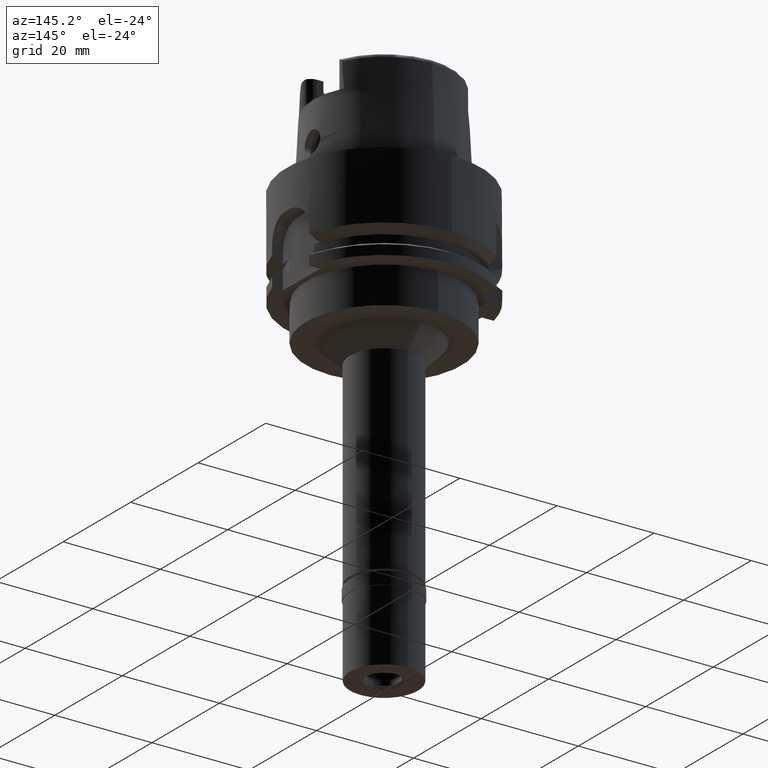
[diagram: clean part render]
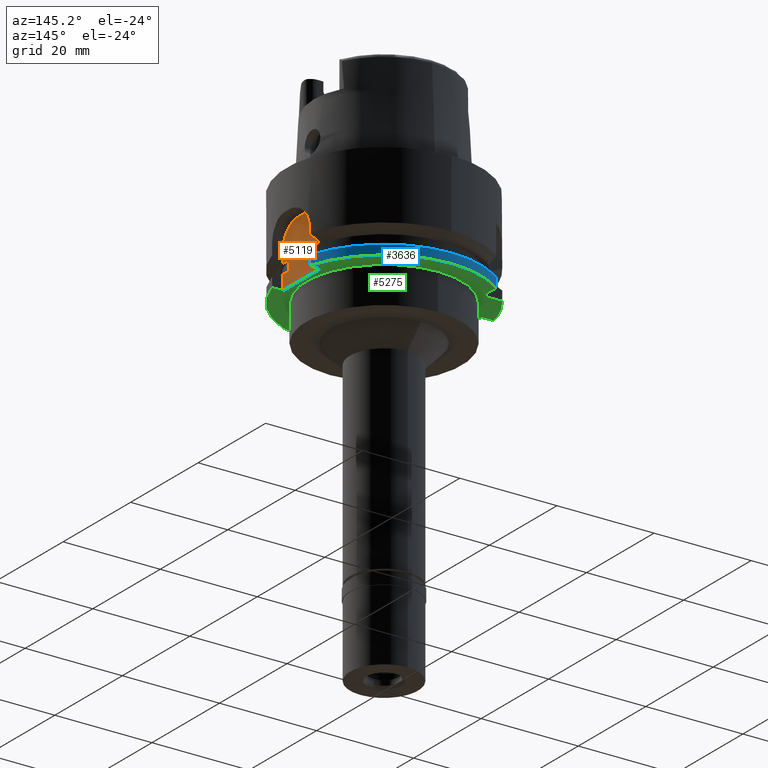
[diagram: same view with three faces highlighted in distinct colors, each labeled with its STEP entity id]
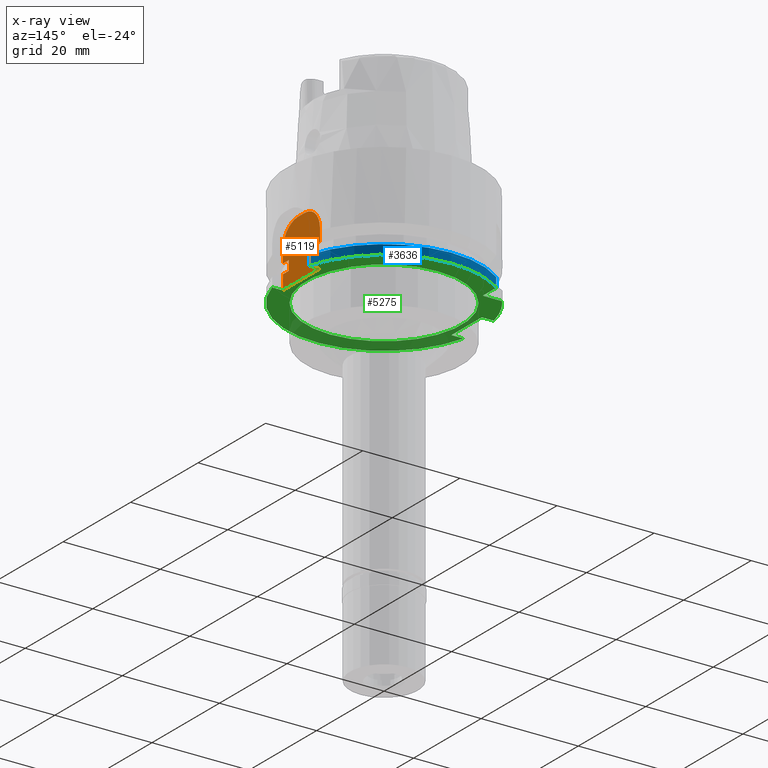
[diagram: x-ray of the same camera — body ghosted, the three highlighted faces saturated]
A machine part, auxiliary view with three faces highlighted in distinct colors.
The next image is the same camera in x-ray (body ghosted, the three faces saturated) — at least one of them is partly hidden behind the body in this view.
Their STEP definitions:

[orange] entity #5119 — the highlighted planar face has unit normal (1, 0, 0).
#73 = CIRCLE ( 'NONE', #3501, 4.500000000000000888 ) ;
#217 = CIRCLE ( 'NONE', #3142, 4.500000000000000000 ) ;
#259 = ORIENTED_EDGE ( 'NONE', *, *, #3910, .F. ) ;
#266 = EDGE_CURVE ( 'NONE', #3184, #2730, #5285, .T. ) ;
#293 = VECTOR ( 'NONE', #3037, 1000.000000000000000 ) ;
#308 = EDGE_CURVE ( 'NONE', #3184, #501, #2473, .T. ) ;
#310 = CARTESIAN_POINT ( 'NONE',  ( 17.00000000000000000, 3.709447398197999846, -15.00000000000000000 ) ) ;
#352 = ORIENTED_EDGE ( 'NONE', *, *, #266, .F. ) ;
#370 = CARTESIAN_POINT ( 'NONE',  ( 17.00000000000000000, -3.709447398197999846, -15.00000000000000000 ) ) ;
#462 = EDGE_CURVE ( 'NONE', #501, #1910, #2981, .T. ) ;
#470 = CARTESIAN_POINT ( 'NONE',  ( 17.00000000000000000, 5.500000000000000000, -17.00000000000000000 ) ) ;
#501 = VERTEX_POINT ( 'NONE', #4712 ) ;
#543 = ORIENTED_EDGE ( 'NONE', *, *, #2597, .F. ) ;
#569 = CARTESIAN_POINT ( 'NONE',  ( 17.00000000000000000, 3.709447398197999846, -17.00000000000000000 ) ) ;
#589 = LINE ( 'NONE', #470, #4673 ) ;
#620 = VECTOR ( 'NONE', #4679, 1000.000000000000000 ) ;
#628 = CARTESIAN_POINT ( 'NONE',  ( 17.00000000000000000, -1.000000000000000000, -12.50000000000000000 ) ) ;
#653 = DIRECTION ( 'NONE',  ( 0.0000000000000000000, 0.0000000000000000000, 1.000000000000000000 ) ) ;
#696 = VERTEX_POINT ( 'NONE', #1282 ) ;
#774 = LINE ( 'NONE', #4700, #5126 ) ;
#775 = VERTEX_POINT ( 'NONE', #5060 ) ;
#777 = ORIENTED_EDGE ( 'NONE', *, *, #308, .T. ) ;
#799 = DIRECTION ( 'NONE',  ( 0.0000000000000000000, -1.000000000000000000, 0.0000000000000000000 ) ) ;
#885 = VECTOR ( 'NONE', #4891, 1000.000000000000000 ) ;
#895 = DIRECTION ( 'NONE',  ( 0.0000000000000000000, 0.0000000000000000000, 1.000000000000000000 ) ) ;
#896 = CARTESIAN_POINT ( 'NONE',  ( 17.00000000000000000, 0.0000000000000000000, 0.0000000000000000000 ) ) ;
#923 = PLANE ( 'NONE',  #3047 ) ;
#978 = VECTOR ( 'NONE', #3182, 1000.000000000000000 ) ;
#1107 = VERTEX_POINT ( 'NONE', #2784 ) ;
#1118 = CARTESIAN_POINT ( 'NONE',  ( 17.00000000000000000, 5.500000000000000000, -15.00000000000000000 ) ) ;
#1164 = ORIENTED_EDGE ( 'NONE', *, *, #1797, .T. ) ;
#1282 = CARTESIAN_POINT ( 'NONE',  ( 17.00000000000000000, 5.500000000000000000, -15.00000000000000000 ) ) ;
#1290 = CARTESIAN_POINT ( 'NONE',  ( 17.00000000000000000, 3.709447398197999846, -17.00000000000000000 ) ) ;
#1351 = VECTOR ( 'NONE', #1360, 1000.000000000000000 ) ;
#1360 = DIRECTION ( 'NONE',  ( 0.0000000000000000000, -1.000000000000000000, 0.0000000000000000000 ) ) ;
#1397 = CARTESIAN_POINT ( 'NONE',  ( 17.00000000000000000, -3.709447398197999846, -15.00000000000000000 ) ) ;
#1457 = LINE ( 'NONE', #4732, #3485 ) ;
#1505 = EDGE_CURVE ( 'NONE', #4480, #2372, #73, .T. ) ;
#1528 = EDGE_LOOP ( 'NONE', ( #2800, #3865, #1164, #543, #3500, #4783, #3365, #5176, #4266, #352, #777, #4536, #2268, #259 ) ) ;
#1596 = CARTESIAN_POINT ( 'NONE',  ( 17.00000000000000000, -5.500000000000000000, -15.00000000000000000 ) ) ;
#1664 = EDGE_CURVE ( 'NONE', #2730, #4460, #774, .T. ) ;
#1746 = DIRECTION ( 'NONE',  ( 0.0000000000000000000, 0.0000000000000000000, -1.000000000000000000 ) ) ;
#1797 = EDGE_CURVE ( 'NONE', #3073, #2106, #3046, .T. ) ;
#1818 = CARTESIAN_POINT ( 'NONE',  ( 17.00000000000000000, -3.709447398197999846, -17.00000000000000000 ) ) ;
#1883 = DIRECTION ( 'NONE',  ( 1.000000000000000000, 0.0000000000000000000, 0.0000000000000000000 ) ) ;
#1910 = VERTEX_POINT ( 'NONE', #3331 ) ;
#2106 = VERTEX_POINT ( 'NONE', #310 ) ;
#2189 = DIRECTION ( 'NONE',  ( -1.000000000000000000, 0.0000000000000000000, 0.0000000000000000000 ) ) ;
#2248 = VERTEX_POINT ( 'NONE', #3675 ) ;
#2268 = ORIENTED_EDGE ( 'NONE', *, *, #4849, .F. ) ;
#2270 = DIRECTION ( 'NONE',  ( 0.0000000000000000000, -1.000000000000000000, 0.0000000000000000000 ) ) ;
#2283 = CARTESIAN_POINT ( 'NONE',  ( 17.00000000000000000, 5.500000000000000000, -17.00000000000000000 ) ) ;
#2318 = CARTESIAN_POINT ( 'NONE',  ( 17.00000000000000000, -5.500000000000000000, -12.50000000000000000 ) ) ;
#2372 = VERTEX_POINT ( 'NONE', #5063 ) ;
#2473 = LINE ( 'NONE', #370, #2555 ) ;
#2533 = VECTOR ( 'NONE', #3234, 1000.000000000000000 ) ;
#2555 = VECTOR ( 'NONE', #3650, 1000.000000000000000 ) ;
#2597 = EDGE_CURVE ( 'NONE', #696, #2106, #3157, .T. ) ;
#2653 = VECTOR ( 'NONE', #799, 1000.000000000000000 ) ;
#2695 = DIRECTION ( 'NONE',  ( 0.0000000000000000000, 0.0000000000000000000, 1.000000000000000000 ) ) ;
#2730 = VERTEX_POINT ( 'NONE', #1596 ) ;
#2784 = CARTESIAN_POINT ( 'NONE',  ( 17.00000000000000000, 5.500000000000000000, -20.00000000000000000 ) ) ;
#2800 = ORIENTED_EDGE ( 'NONE', *, *, #5206, .F. ) ;
#2963 = VECTOR ( 'NONE', #1746, 1000.000000000000000 ) ;
#2969 = CARTESIAN_POINT ( 'NONE',  ( 17.00000000000000000, 1.000000000000000000, -12.50000000000000000 ) ) ;
#2981 = LINE ( 'NONE', #1818, #1351 ) ;
#3037 = DIRECTION ( 'NONE',  ( 0.0000000000000000000, 0.0000000000000000000, -1.000000000000000000 ) ) ;
#3046 = LINE ( 'NONE', #1290, #885 ) ;
#3047 = AXIS2_PLACEMENT_3D ( 'NONE', #896, #1883, #3923 ) ;
#3073 = VERTEX_POINT ( 'NONE', #569 ) ;
#3078 = CARTESIAN_POINT ( 'NONE',  ( 17.00000000000000000, 5.500000000000000000, -20.00000000000000000 ) ) ;
#3088 = LINE ( 'NONE', #4321, #293 ) ;
#3142 = AXIS2_PLACEMENT_3D ( 'NONE', #628, #3932, #2270 ) ;
#3157 = LINE ( 'NONE', #1118, #978 ) ;
#3182 = DIRECTION ( 'NONE',  ( 0.0000000000000000000, -1.000000000000000000, 0.0000000000000000000 ) ) ;
#3184 = VERTEX_POINT ( 'NONE', #1397 ) ;
#3234 = DIRECTION ( 'NONE',  ( 0.0000000000000000000, 1.000000000000000000, 0.0000000000000000000 ) ) ;
#3331 = CARTESIAN_POINT ( 'NONE',  ( 17.00000000000000000, -5.500000000000000000, -17.00000000000000000 ) ) ;
#3365 = ORIENTED_EDGE ( 'NONE', *, *, #4175, .F. ) ;
#3460 = LINE ( 'NONE', #2283, #2963 ) ;
#3485 = VECTOR ( 'NONE', #653, 1000.000000000000000 ) ;
#3500 = ORIENTED_EDGE ( 'NONE', *, *, #5211, .F. ) ;
#3501 = AXIS2_PLACEMENT_3D ( 'NONE', #2969, #2189, #895 ) ;
#3637 = LINE ( 'NONE', #5268, #2533 ) ;
#3650 = DIRECTION ( 'NONE',  ( 0.0000000000000000000, -4.085620730621000160E-14, -1.000000000000000000 ) ) ;
#3675 = CARTESIAN_POINT ( 'NONE',  ( 17.00000000000000000, -1.000000000000000000, -8.000000000000000000 ) ) ;
#3865 = ORIENTED_EDGE ( 'NONE', *, *, #4965, .T. ) ;
#3894 = DIRECTION ( 'NONE',  ( 0.0000000000000000000, -1.000000000000000000, 0.0000000000000000000 ) ) ;
#3910 = EDGE_CURVE ( 'NONE', #1107, #775, #4210, .T. ) ;
#3923 = DIRECTION ( 'NONE',  ( 0.0000000000000000000, 1.000000000000000000, 0.0000000000000000000 ) ) ;
#3932 = DIRECTION ( 'NONE',  ( -1.000000000000000000, 0.0000000000000000000, 0.0000000000000000000 ) ) ;
#3960 = CARTESIAN_POINT ( 'NONE',  ( 17.00000000000000000, 5.500000000000000000, -17.00000000000000000 ) ) ;
#4103 = VERTEX_POINT ( 'NONE', #3960 ) ;
#4175 = EDGE_CURVE ( 'NONE', #2248, #4480, #3637, .T. ) ;
#4210 = LINE ( 'NONE', #3078, #620 ) ;
#4266 = ORIENTED_EDGE ( 'NONE', *, *, #1664, .F. ) ;
#4321 = CARTESIAN_POINT ( 'NONE',  ( 17.00000000000000000, 5.500000000000000000, -12.50000000000000000 ) ) ;
#4383 = CARTESIAN_POINT ( 'NONE',  ( 17.00000000000000000, 1.000000000000000000, -8.000000000000000000 ) ) ;
#4460 = VERTEX_POINT ( 'NONE', #2318 ) ;
#4480 = VERTEX_POINT ( 'NONE', #4383 ) ;
#4536 = ORIENTED_EDGE ( 'NONE', *, *, #462, .T. ) ;
#4555 = CARTESIAN_POINT ( 'NONE',  ( 17.00000000000000000, -3.709447398197999846, -15.00000000000000000 ) ) ;
#4598 = FACE_OUTER_BOUND ( 'NONE', #1528, .T. ) ;
#4673 = VECTOR ( 'NONE', #3894, 1000.000000000000000 ) ;
#4679 = DIRECTION ( 'NONE',  ( 0.0000000000000000000, -1.000000000000000000, 0.0000000000000000000 ) ) ;
#4700 = CARTESIAN_POINT ( 'NONE',  ( 17.00000000000000000, -5.500000000000000000, -15.00000000000000000 ) ) ;
#4712 = CARTESIAN_POINT ( 'NONE',  ( 17.00000000000000000, -3.709447398197999846, -17.00000000000000000 ) ) ;
#4732 = CARTESIAN_POINT ( 'NONE',  ( 17.00000000000000000, -5.500000000000000000, -20.00000000000000000 ) ) ;
#4783 = ORIENTED_EDGE ( 'NONE', *, *, #1505, .F. ) ;
#4849 = EDGE_CURVE ( 'NONE', #775, #1910, #1457, .T. ) ;
#4891 = DIRECTION ( 'NONE',  ( 0.0000000000000000000, 4.085620730621000160E-14, 1.000000000000000000 ) ) ;
#4895 = EDGE_CURVE ( 'NONE', #4460, #2248, #217, .T. ) ;
#4965 = EDGE_CURVE ( 'NONE', #4103, #3073, #589, .T. ) ;
#5060 = CARTESIAN_POINT ( 'NONE',  ( 17.00000000000000000, -5.500000000000000000, -20.00000000000000000 ) ) ;
#5063 = CARTESIAN_POINT ( 'NONE',  ( 17.00000000000000000, 5.500000000000000000, -12.50000000000000000 ) ) ;
#5119 = ADVANCED_FACE ( 'NONE', ( #4598 ), #923, .T. ) ;
#5126 = VECTOR ( 'NONE', #2695, 1000.000000000000000 ) ;
#5176 = ORIENTED_EDGE ( 'NONE', *, *, #4895, .F. ) ;
#5206 = EDGE_CURVE ( 'NONE', #4103, #1107, #3460, .T. ) ;
#5211 = EDGE_CURVE ( 'NONE', #2372, #696, #3088, .T. ) ;
#5268 = CARTESIAN_POINT ( 'NONE',  ( 17.00000000000000000, -1.000000000000000000, -8.000000000000000000 ) ) ;
#5285 = LINE ( 'NONE', #4555, #2653 ) ;

[blue] entity #3636 — the highlighted cylindrical surface (partial cylindrical patch) has radius 20 mm, axis along (0, 0, 1).
#52 = AXIS2_PLACEMENT_3D ( 'NONE', #3285, #2827, #3200 ) ;
#177 = CARTESIAN_POINT ( 'NONE',  ( 0.0000000000000000000, 0.0000000000000000000, -91.30000000000001137 ) ) ;
#664 = AXIS2_PLACEMENT_3D ( 'NONE', #4311, #4286, #1032 ) ;
#1027 = CARTESIAN_POINT ( 'NONE',  ( 19.22888452303000051, 5.500000000000000000, -20.00000000000000000 ) ) ;
#1032 = DIRECTION ( 'NONE',  ( 0.0000000000000000000, 1.000000000000000000, 0.0000000000000000000 ) ) ;
#1254 = CIRCLE ( 'NONE', #52, 20.00000000000000000 ) ;
#1294 = CARTESIAN_POINT ( 'NONE',  ( 19.22888452303000051, 5.500000000000000000, -20.00000000000000000 ) ) ;
#1375 = EDGE_CURVE ( 'NONE', #4731, #3000, #2556, .T. ) ;
#1388 = VECTOR ( 'NONE', #3065, 1000.000000000000114 ) ;
#1454 = LINE ( 'NONE', #1027, #3335 ) ;
#1575 = ORIENTED_EDGE ( 'NONE', *, *, #1375, .T. ) ;
#1667 = EDGE_CURVE ( 'NONE', #4731, #3551, #1454, .T. ) ;
#1905 = LINE ( 'NONE', #3542, #1388 ) ;
#2231 = CYLINDRICAL_SURFACE ( 'NONE', #2595, 20.00000000000000000 ) ;
#2375 = EDGE_LOOP ( 'NONE', ( #2696, #3143, #1575, #4834 ) ) ;
#2459 = CARTESIAN_POINT ( 'NONE',  ( -12.00000837203000081, 15.99999372097000006, -18.02075773440000006 ) ) ;
#2556 = CIRCLE ( 'NONE', #664, 20.00000000000000000 ) ;
#2595 = AXIS2_PLACEMENT_3D ( 'NONE', #177, #3462, #4691 ) ;
#2696 = ORIENTED_EDGE ( 'NONE', *, *, #4557, .T. ) ;
#2803 = CARTESIAN_POINT ( 'NONE',  ( -12.00000000000000000, 16.00000000000000000, -20.00000000000000000 ) ) ;
#2827 = DIRECTION ( 'NONE',  ( 0.0000000000000000000, 0.0000000000000000000, -1.000000000000000000 ) ) ;
#2865 = VERTEX_POINT ( 'NONE', #2459 ) ;
#3000 = VERTEX_POINT ( 'NONE', #2803 ) ;
#3065 = DIRECTION ( 'NONE',  ( 4.229916271528087972E-06, 3.172442792338068757E-06, -0.9999999999860217370 ) ) ;
#3143 = ORIENTED_EDGE ( 'NONE', *, *, #1667, .F. ) ;
#3200 = DIRECTION ( 'NONE',  ( -0.5999999999999999778, 0.8000000000000000444, 0.0000000000000000000 ) ) ;
#3285 = CARTESIAN_POINT ( 'NONE',  ( 0.0000000000000000000, 0.0000000000000000000, -18.02072594216000212 ) ) ;
#3335 = VECTOR ( 'NONE', #4303, 1000.000000000000000 ) ;
#3462 = DIRECTION ( 'NONE',  ( 0.0000000000000000000, 0.0000000000000000000, 1.000000000000000000 ) ) ;
#3542 = CARTESIAN_POINT ( 'NONE',  ( -12.00000837203000081, 15.99999372097000006, -18.02075773440000006 ) ) ;
#3551 = VERTEX_POINT ( 'NONE', #3892 ) ;
#3601 = EDGE_CURVE ( 'NONE', #2865, #3000, #1905, .T. ) ;
#3636 = ADVANCED_FACE ( 'NONE', ( #4273 ), #2231, .T. ) ;
#3892 = CARTESIAN_POINT ( 'NONE',  ( 19.22888438496000063, 5.500000482698999882, -18.02072998730000108 ) ) ;
#4273 = FACE_OUTER_BOUND ( 'NONE', #2375, .T. ) ;
#4286 = DIRECTION ( 'NONE',  ( 0.0000000000000000000, 0.0000000000000000000, 1.000000000000000000 ) ) ;
#4303 = DIRECTION ( 'NONE',  ( -6.975607790903768547E-08, 2.438772734530919442E-07, 0.9999999999999678035 ) ) ;
#4311 = CARTESIAN_POINT ( 'NONE',  ( 0.0000000000000000000, 0.0000000000000000000, -20.00000000000000000 ) ) ;
#4557 = EDGE_CURVE ( 'NONE', #2865, #3551, #1254, .T. ) ;
#4691 = DIRECTION ( 'NONE',  ( 0.0000000000000000000, 1.000000000000000000, 0.0000000000000000000 ) ) ;
#4731 = VERTEX_POINT ( 'NONE', #1294 ) ;
#4834 = ORIENTED_EDGE ( 'NONE', *, *, #3601, .F. ) ;

[green] entity #5275 — the highlighted planar face has unit normal (0, 0, 1).
#3 = ORIENTED_EDGE ( 'NONE', *, *, #4459, .F. ) ;
#48 = DIRECTION ( 'NONE',  ( 0.0000000000000000000, 1.000000000000000000, 0.0000000000000000000 ) ) ;
#120 = DIRECTION ( 'NONE',  ( -1.000000000000000000, 1.449839272533000158E-13, 0.0000000000000000000 ) ) ;
#126 = AXIS2_PLACEMENT_3D ( 'NONE', #1821, #2229, #1341 ) ;
#271 = DIRECTION ( 'NONE',  ( 0.0000000000000000000, -1.000000000000000000, 0.0000000000000000000 ) ) ;
#300 = CIRCLE ( 'NONE', #2793, 20.00000000000000000 ) ;
#340 = CARTESIAN_POINT ( 'NONE',  ( 19.22888452303000051, 5.500000000000000000, -20.00000000000000000 ) ) ;
#357 = EDGE_CURVE ( 'NONE', #4731, #1107, #4055, .T. ) ;
#363 = ORIENTED_EDGE ( 'NONE', *, *, #4616, .F. ) ;
#391 = CARTESIAN_POINT ( 'NONE',  ( -17.00000000000000000, 4.500000000000000000, -20.00000000000000000 ) ) ;
#447 = CARTESIAN_POINT ( 'NONE',  ( 19.22888452303000051, -5.500000000000000000, -20.00000000000000000 ) ) ;
#485 = EDGE_LOOP ( 'NONE', ( #726, #4095 ) ) ;
#552 = CARTESIAN_POINT ( 'NONE',  ( -12.00000000000000000, 12.00000000000000000, -20.00000000000000000 ) ) ;
#574 = CARTESIAN_POINT ( 'NONE',  ( -12.00000000000000000, 12.00000000000000000, -20.00000000000000000 ) ) ;
#620 = VECTOR ( 'NONE', #4679, 1000.000000000000000 ) ;
#629 = CARTESIAN_POINT ( 'NONE',  ( -17.00000000000000000, 4.500000000000000000, -20.00000000000000000 ) ) ;
#642 = EDGE_CURVE ( 'NONE', #3979, #3658, #2866, .T. ) ;
#664 = AXIS2_PLACEMENT_3D ( 'NONE', #4311, #4286, #1032 ) ;
#726 = ORIENTED_EDGE ( 'NONE', *, *, #4011, .F. ) ;
#754 = EDGE_CURVE ( 'NONE', #1422, #1615, #2541, .T. ) ;
#775 = VERTEX_POINT ( 'NONE', #5060 ) ;
#807 = CARTESIAN_POINT ( 'NONE',  ( 0.0000000000000000000, -16.00000000000000000, -20.00000000000000000 ) ) ;
#815 = VERTEX_POINT ( 'NONE', #552 ) ;
#838 = EDGE_CURVE ( 'NONE', #815, #2394, #3025, .T. ) ;
#981 = ORIENTED_EDGE ( 'NONE', *, *, #357, .T. ) ;
#1032 = DIRECTION ( 'NONE',  ( 0.0000000000000000000, 1.000000000000000000, 0.0000000000000000000 ) ) ;
#1051 = ORIENTED_EDGE ( 'NONE', *, *, #642, .T. ) ;
#1085 = DIRECTION ( 'NONE',  ( -1.000000000000000000, -2.191670881949000037E-14, 0.0000000000000000000 ) ) ;
#1090 = CARTESIAN_POINT ( 'NONE',  ( -17.00000000000000000, 4.500000000000000000, -20.00000000000000000 ) ) ;
#1107 = VERTEX_POINT ( 'NONE', #2784 ) ;
#1224 = CARTESIAN_POINT ( 'NONE',  ( -17.00000000000000000, -4.500000000000000000, -20.00000000000000000 ) ) ;
#1272 = VECTOR ( 'NONE', #3303, 1000.000000000000000 ) ;
#1294 = CARTESIAN_POINT ( 'NONE',  ( 19.22888452303000051, 5.500000000000000000, -20.00000000000000000 ) ) ;
#1341 = DIRECTION ( 'NONE',  ( 0.0000000000000000000, -1.000000000000000000, 0.0000000000000000000 ) ) ;
#1375 = EDGE_CURVE ( 'NONE', #4731, #3000, #2556, .T. ) ;
#1378 = DIRECTION ( 'NONE',  ( -1.000000000000000000, 0.0000000000000000000, 0.0000000000000000000 ) ) ;
#1422 = VERTEX_POINT ( 'NONE', #1224 ) ;
#1476 = VECTOR ( 'NONE', #48, 1000.000000000000000 ) ;
#1554 = CARTESIAN_POINT ( 'NONE',  ( 0.0000000000000000000, 16.00000000000000000, -20.00000000000000000 ) ) ;
#1615 = VERTEX_POINT ( 'NONE', #3825 ) ;
#1654 = DIRECTION ( 'NONE',  ( -1.000000000000000000, -1.449839272533000158E-13, 0.0000000000000000000 ) ) ;
#1672 = CIRCLE ( 'NONE', #3394, 16.00000000000000000 ) ;
#1704 = VECTOR ( 'NONE', #120, 1000.000000000000000 ) ;
#1821 = CARTESIAN_POINT ( 'NONE',  ( 0.0000000000000000000, 0.0000000000000000000, -20.00000000000000000 ) ) ;
#1862 = CARTESIAN_POINT ( 'NONE',  ( 0.0000000000000000000, 0.0000000000000000000, -20.00000000000000000 ) ) ;
#1940 = ORIENTED_EDGE ( 'NONE', *, *, #1375, .F. ) ;
#2052 = VECTOR ( 'NONE', #1654, 1000.000000000000000 ) ;
#2107 = CIRCLE ( 'NONE', #126, 16.00000000000000000 ) ;
#2118 = VECTOR ( 'NONE', #1085, 1000.000000000000000 ) ;
#2125 = VERTEX_POINT ( 'NONE', #447 ) ;
#2229 = DIRECTION ( 'NONE',  ( 0.0000000000000000000, 0.0000000000000000000, -1.000000000000000000 ) ) ;
#2253 = DIRECTION ( 'NONE',  ( 1.000000000000000000, 0.0000000000000000000, 0.0000000000000000000 ) ) ;
#2257 = EDGE_CURVE ( 'NONE', #815, #3000, #2492, .T. ) ;
#2325 = LINE ( 'NONE', #1090, #3403 ) ;
#2379 = DIRECTION ( 'NONE',  ( 0.0000000000000000000, 0.0000000000000000000, -1.000000000000000000 ) ) ;
#2394 = VERTEX_POINT ( 'NONE', #4991 ) ;
#2402 = ORIENTED_EDGE ( 'NONE', *, *, #838, .F. ) ;
#2492 = LINE ( 'NONE', #4133, #1476 ) ;
#2541 = LINE ( 'NONE', #3852, #1704 ) ;
#2542 = CARTESIAN_POINT ( 'NONE',  ( -19.48717526991000071, 4.500000000000000000, -20.00000000000000000 ) ) ;
#2556 = CIRCLE ( 'NONE', #664, 20.00000000000000000 ) ;
#2624 = CIRCLE ( 'NONE', #5101, 20.00000000000000000 ) ;
#2784 = CARTESIAN_POINT ( 'NONE',  ( 17.00000000000000000, 5.500000000000000000, -20.00000000000000000 ) ) ;
#2793 = AXIS2_PLACEMENT_3D ( 'NONE', #2909, #3258, #4535 ) ;
#2803 = CARTESIAN_POINT ( 'NONE',  ( -12.00000000000000000, 16.00000000000000000, -20.00000000000000000 ) ) ;
#2866 = LINE ( 'NONE', #391, #2052 ) ;
#2909 = CARTESIAN_POINT ( 'NONE',  ( 0.0000000000000000000, 0.0000000000000000000, -20.00000000000000000 ) ) ;
#2984 = CARTESIAN_POINT ( 'NONE',  ( 0.0000000000000000000, 0.0000000000000000000, -20.00000000000000000 ) ) ;
#3000 = VERTEX_POINT ( 'NONE', #2803 ) ;
#3010 = DIRECTION ( 'NONE',  ( 0.0000000000000000000, 0.0000000000000000000, 1.000000000000000000 ) ) ;
#3025 = LINE ( 'NONE', #574, #4875 ) ;
#3078 = CARTESIAN_POINT ( 'NONE',  ( 17.00000000000000000, 5.500000000000000000, -20.00000000000000000 ) ) ;
#3107 = ORIENTED_EDGE ( 'NONE', *, *, #4881, .F. ) ;
#3258 = DIRECTION ( 'NONE',  ( 0.0000000000000000000, 0.0000000000000000000, 1.000000000000000000 ) ) ;
#3303 = DIRECTION ( 'NONE',  ( -1.000000000000000000, 2.550307935358999985E-14, 0.0000000000000000000 ) ) ;
#3394 = AXIS2_PLACEMENT_3D ( 'NONE', #1862, #2379, #5164 ) ;
#3403 = VECTOR ( 'NONE', #271, 1000.000000000000000 ) ;
#3488 = FACE_BOUND ( 'NONE', #485, .T. ) ;
#3658 = VERTEX_POINT ( 'NONE', #2542 ) ;
#3707 = VERTEX_POINT ( 'NONE', #1554 ) ;
#3761 = ORIENTED_EDGE ( 'NONE', *, *, #754, .F. ) ;
#3825 = CARTESIAN_POINT ( 'NONE',  ( -19.48717526991000071, -4.500000000000000000, -20.00000000000000000 ) ) ;
#3851 = VERTEX_POINT ( 'NONE', #807 ) ;
#3852 = CARTESIAN_POINT ( 'NONE',  ( -17.00000000000000000, -4.500000000000000000, -20.00000000000000000 ) ) ;
#3902 = AXIS2_PLACEMENT_3D ( 'NONE', #2984, #3010, #2253 ) ;
#3910 = EDGE_CURVE ( 'NONE', #1107, #775, #4210, .T. ) ;
#3977 = ORIENTED_EDGE ( 'NONE', *, *, #3910, .T. ) ;
#3979 = VERTEX_POINT ( 'NONE', #629 ) ;
#3983 = EDGE_LOOP ( 'NONE', ( #1940, #981, #3977, #3, #5028, #3761, #3107, #1051, #363, #2402, #4660 ) ) ;
#4007 = CARTESIAN_POINT ( 'NONE',  ( 19.22888452303000051, -5.500000000000000000, -20.00000000000000000 ) ) ;
#4011 = EDGE_CURVE ( 'NONE', #3707, #3851, #1672, .T. ) ;
#4055 = LINE ( 'NONE', #340, #1272 ) ;
#4095 = ORIENTED_EDGE ( 'NONE', *, *, #5277, .F. ) ;
#4133 = CARTESIAN_POINT ( 'NONE',  ( -12.00000000000000000, 12.00000000000000000, -20.00000000000000000 ) ) ;
#4210 = LINE ( 'NONE', #3078, #620 ) ;
#4286 = DIRECTION ( 'NONE',  ( 0.0000000000000000000, 0.0000000000000000000, 1.000000000000000000 ) ) ;
#4311 = CARTESIAN_POINT ( 'NONE',  ( 0.0000000000000000000, 0.0000000000000000000, -20.00000000000000000 ) ) ;
#4406 = LINE ( 'NONE', #4007, #2118 ) ;
#4432 = DIRECTION ( 'NONE',  ( -0.8000000000000000444, 0.5999999999999999778, 0.0000000000000000000 ) ) ;
#4459 = EDGE_CURVE ( 'NONE', #2125, #775, #4406, .T. ) ;
#4535 = DIRECTION ( 'NONE',  ( 0.0000000000000000000, -1.000000000000000000, 0.0000000000000000000 ) ) ;
#4612 = PLANE ( 'NONE',  #3902 ) ;
#4616 = EDGE_CURVE ( 'NONE', #2394, #3658, #2624, .T. ) ;
#4649 = EDGE_CURVE ( 'NONE', #1615, #2125, #300, .T. ) ;
#4660 = ORIENTED_EDGE ( 'NONE', *, *, #2257, .T. ) ;
#4679 = DIRECTION ( 'NONE',  ( 0.0000000000000000000, -1.000000000000000000, 0.0000000000000000000 ) ) ;
#4731 = VERTEX_POINT ( 'NONE', #1294 ) ;
#4838 = CARTESIAN_POINT ( 'NONE',  ( 0.0000000000000000000, 0.0000000000000000000, -20.00000000000000000 ) ) ;
#4865 = DIRECTION ( 'NONE',  ( 0.0000000000000000000, 0.0000000000000000000, 1.000000000000000000 ) ) ;
#4875 = VECTOR ( 'NONE', #1378, 1000.000000000000000 ) ;
#4881 = EDGE_CURVE ( 'NONE', #3979, #1422, #2325, .T. ) ;
#4991 = CARTESIAN_POINT ( 'NONE',  ( -16.00000000000000000, 12.00000000000000000, -20.00000000000000000 ) ) ;
#5028 = ORIENTED_EDGE ( 'NONE', *, *, #4649, .F. ) ;
#5060 = CARTESIAN_POINT ( 'NONE',  ( 17.00000000000000000, -5.500000000000000000, -20.00000000000000000 ) ) ;
#5092 = FACE_OUTER_BOUND ( 'NONE', #3983, .T. ) ;
#5101 = AXIS2_PLACEMENT_3D ( 'NONE', #4838, #4865, #4432 ) ;
#5164 = DIRECTION ( 'NONE',  ( 0.0000000000000000000, 1.000000000000000000, 0.0000000000000000000 ) ) ;
#5275 = ADVANCED_FACE ( 'NONE', ( #5092, #3488 ), #4612, .F. ) ;
#5277 = EDGE_CURVE ( 'NONE', #3851, #3707, #2107, .T. ) ;